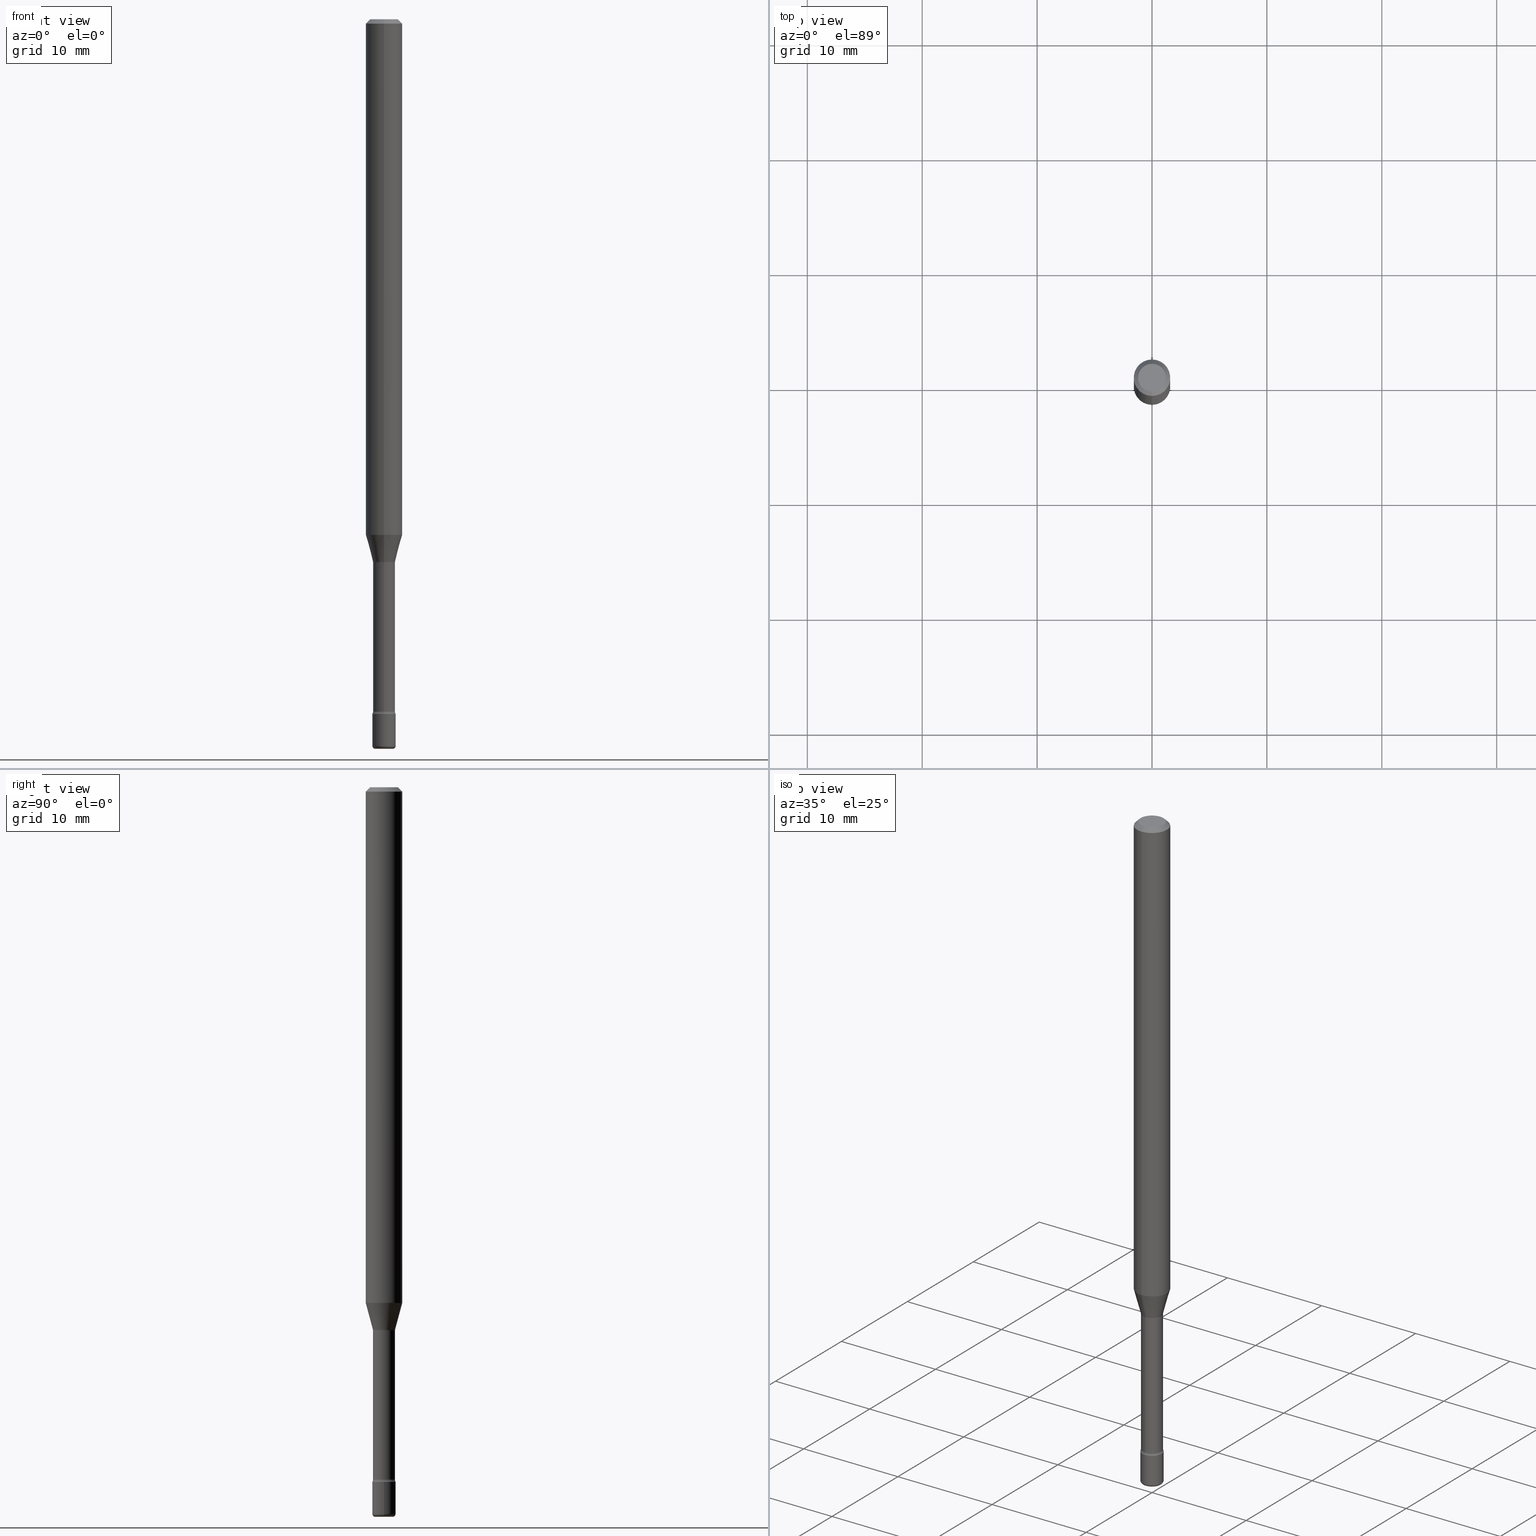
[diagram: canonical four-view strip — front | top / right | iso, engineering-drawing reading convention]
A machine part, canonical four-view strip (front | top / right | iso — engineering-drawing reading convention). The complete STEP part file that produces these views, byte-faithful:
ISO-10303-21;
HEADER;
FILE_DESCRIPTION (( 'STEP AP203' ),
    '1' );
FILE_NAME ('08945.STEP',
    '2024-03-06T20:11:54',
    ( '' ),
    ( '' ),
    'SwSTEP 2.0',
    'SolidWorks 2023',
    '' );
FILE_SCHEMA (( 'CONFIG_CONTROL_DESIGN' ));
ENDSEC;

DATA;
#1 = LINE ( 'NONE', #182, #111 ) ;
#2 = APPROVAL ( #396, 'UNSPECIFIED' ) ;
#3 = CARTESIAN_POINT ( 'NONE',  ( -2.793185071073924012E-16, -0.04000000000000829975, -2.379999999999999893 ) ) ;
#4 = FACE_OUTER_BOUND ( 'NONE', #187, .T. ) ;
#5 = APPROVAL_DATE_TIME ( #100, #194 ) ;
#6 = CIRCLE ( 'NONE', #527, 0.02999999999999999889 ) ;
#7 = CARTESIAN_POINT ( 'NONE',  ( 2.756905814749770095E-16, 0.03759999999999177195, -2.371861204020250025 ) ) ;
#8 = AXIS2_PLACEMENT_3D ( 'NONE', #233, #99, #362 ) ;
#9 = CARTESIAN_POINT ( 'NONE',  ( -3.673038368462397802E-16, -0.05260000000000830678, -2.371861204020249581 ) ) ;
#10 = FACE_OUTER_BOUND ( 'NONE', #128, .T. ) ;
#11 = ORIENTED_EDGE ( 'NONE', *, *, #105, .F. ) ;
#12 = DIRECTION ( 'NONE',  ( 7.105427357601001859E-15, 1.000000000000000000, -3.491481338843145583E-15 ) ) ;
#13 = PRODUCT ( '08945', '08945', '', ( #208 ) ) ;
#14 = CARTESIAN_POINT ( 'NONE',  ( 4.440892098501060035E-16, 0.06249999999999995143, -0.01500000000000024578 ) ) ;
#15 = PERSON ( 'UNSPECIFIED', 'UNSPECIFIED', 'UNSPECIFIED', ('UNSPECIFIED'), ('UNSPECIFIED'), ('UNSPECIFIED') ) ;
#16 = CC_DESIGN_DATE_AND_TIME_ASSIGNMENT ( #437, #41, ( #108 ) ) ;
#17 = ORIENTED_EDGE ( 'NONE', *, *, #471, .T. ) ;
#18 = CARTESIAN_POINT ( 'NONE',  ( 6.113672015462842613E-29, -8.728703347107864943E-15, -2.500000000000000000 ) ) ;
#19 = FACE_OUTER_BOUND ( 'NONE', #43, .T. ) ;
#20 = AXIS2_PLACEMENT_3D ( 'NONE', #414, #147, #150 ) ;
#21 = ADVANCED_FACE ( 'NONE', ( #216 ), #402, .T. ) ;
#22 = PLANE ( 'NONE',  #441 ) ;
#23 = DIRECTION ( 'NONE',  ( 4.937700262164548831E-15, 0.7071067811865452413, -0.7071067811865497932 ) ) ;
#24 = ORIENTED_EDGE ( 'NONE', *, *, #249, .F. ) ;
#25 = CARTESIAN_POINT ( 'NONE',  ( 5.819849929479863427E-29, -8.310249474741165062E-15, -2.379999999999999893 ) ) ;
#26 = EDGE_LOOP ( 'NONE', ( #337, #417, #166, #152 ) ) ;
#27 = CARTESIAN_POINT ( 'NONE',  ( 4.543621645165429494E-29, -6.487904301259741828E-15, -1.858092501787273143 ) ) ;
#28 = ORIENTED_EDGE ( 'NONE', *, *, #536, .T. ) ;
#29 = ORIENTED_EDGE ( 'NONE', *, *, #262, .T. ) ;
#30 = DIRECTION ( 'NONE',  ( -6.982962677686266711E-15, -1.000000000000000000, 3.491481338843145583E-15 ) ) ;
#31 = VECTOR ( 'NONE', #23, 39.37007874015748143 ) ;
#32 = CIRCLE ( 'NONE', #20, 0.03760000000000000842 ) ;
#33 = EDGE_CURVE ( 'NONE', #384, #139, #451, .T. ) ;
#34 = CARTESIAN_POINT ( 'NONE',  ( -1.169113584055446105E-44, 1.669184350826100908E-30, 4.780733988912460139E-16 ) ) ;
#35 = DIRECTION ( 'NONE',  ( -2.445468806185136877E-29, 3.491481338843145188E-15, 1.000000000000000000 ) ) ;
#36 = EDGE_LOOP ( 'NONE', ( #443, #380, #332, #11 ) ) ;
#37 = DIRECTION ( 'NONE',  ( -2.445315096420110410E-29, 3.491701459975279518E-15, 1.000000000000000000 ) ) ;
#38 = AXIS2_PLACEMENT_3D ( 'NONE', #487, #87, #219 ) ;
#39 = CIRCLE ( 'NONE', #356, 0.06250000000000000000 ) ;
#40 = PRODUCT_DEFINITION_FORMATION_WITH_SPECIFIED_SOURCE ( 'ANY', '', #13, .NOT_KNOWN. ) ;
#41 = DATE_TIME_ROLE ( 'creation_date' ) ;
#42 = EDGE_CURVE ( 'NONE', #139, #300, #354, .T. ) ;
#43 = EDGE_LOOP ( 'NONE', ( #222, #381 ) ) ;
#44 = ADVANCED_BREP_SHAPE_REPRESENTATION ( '08945', ( #238, #423, #207 ), #306 ) ;
#45 = CALENDAR_DATE ( 2024, 6, 3 ) ;
#46 = ORIENTED_EDGE ( 'NONE', *, *, #439, .T. ) ;
#47 = AXIS2_PLACEMENT_3D ( 'NONE', #517, #338, #205 ) ;
#48 = DIRECTION ( 'NONE',  ( 1.000000000000000000, 0.000000000000000000, 0.000000000000000000 ) ) ;
#49 = VECTOR ( 'NONE', #200, 39.37007874015748143 ) ;
#50 = ORIENTED_EDGE ( 'NONE', *, *, #371, .T. ) ;
#51 = DATE_AND_TIME ( #215, #80 ) ;
#52 = DIRECTION ( 'NONE',  ( -2.445315096420110410E-29, 3.491701459975279518E-15, 1.000000000000000000 ) ) ;
#53 = EDGE_CURVE ( 'NONE', #508, #177, #236, .T. ) ;
#54 = CARTESIAN_POINT ( 'NONE',  ( 4.553401260645949734E-29, -6.501050223826328957E-15, -1.861974787463811065 ) ) ;
#55 = DIRECTION ( 'NONE',  ( -1.000000000000000000, 6.982962677686265922E-15, -4.883557194083112340E-29 ) ) ;
#56 = EDGE_LOOP ( 'NONE', ( #24, #122, #184, #110 ) ) ;
#57 = AXIS2_PLACEMENT_3D ( 'NONE', #277, #503, #91 ) ;
#58 = FACE_OUTER_BOUND ( 'NONE', #510, .T. ) ;
#59 = DIRECTION ( 'NONE',  ( -2.445315096420110130E-29, 3.491701459975279518E-15, 1.000000000000000000 ) ) ;
#60 = EDGE_LOOP ( 'NONE', ( #138, #485, #359, #376 ) ) ;
#61 = DIRECTION ( 'NONE',  ( 1.000000000000000000, -6.982962677686236734E-15, 0.000000000000000000 ) ) ;
#62 = DIRECTION ( 'NONE',  ( -6.982962677686267499E-15, -1.000000000000000000, 0.000000000000000000 ) ) ;
#63 = CARTESIAN_POINT ( 'NONE',  ( 5.820215758720625190E-29, -8.309725586446686731E-15, -2.379999999999999893 ) ) ;
#64 = CIRCLE ( 'NONE', #143, 0.03811111260566397985 ) ;
#65 = DIRECTION ( 'NONE',  ( -2.445468806185136597E-29, 3.491481338843145583E-15, 1.000000000000000000 ) ) ;
#66 = DIRECTION ( 'NONE',  ( -6.982962677686265922E-15, -1.000000000000000000, 6.829619984160658243E-15 ) ) ;
#67 = CYLINDRICAL_SURFACE ( 'NONE', #490, 0.03760000000000002923 ) ;
#68 = CARTESIAN_POINT ( 'NONE',  ( 5.819849929479863427E-29, -8.310249474741165062E-15, -2.379999999999999893 ) ) ;
#69 = EDGE_CURVE ( 'NONE', #497, #344, #340, .T. ) ;
#70 = ORIENTED_EDGE ( 'NONE', *, *, #560, .F. ) ;
#71 = FACE_OUTER_BOUND ( 'NONE', #479, .T. ) ;
#72 = DIRECTION ( 'NONE',  ( -2.445468806185136597E-29, 3.491481338843145583E-15, 1.000000000000000000 ) ) ;
#73 = ADVANCED_FACE ( 'NONE', ( #484 ), #558, .T. ) ;
#74 = CARTESIAN_POINT ( 'NONE',  ( 0.02999999999999999889, -8.903277414050018455E-15, -2.489999999999999769 ) ) ;
#75 = DIRECTION ( 'NONE',  ( -6.982962677686265922E-15, -1.000000000000000000, 6.829619984160658243E-15 ) ) ;
#76 = APPLICATION_PROTOCOL_DEFINITION ( 'international standard', 'config_control_design', 1994, #433 ) ;
#77 = ORIENTED_EDGE ( 'NONE', *, *, #172, .F. ) ;
#78 = CIRCLE ( 'NONE', #169, 0.01499999999999996822 ) ;
#79 = CIRCLE ( 'NONE', #378, 0.02999999999999999889 ) ;
#80 = LOCAL_TIME ( 15, 11, 54.00000000000000000, #176 ) ;
#81 = AXIS2_PLACEMENT_3D ( 'NONE', #557, #426, #161 ) ;
#82 = ORIENTED_EDGE ( 'NONE', *, *, #371, .F. ) ;
#83 = VERTEX_POINT ( 'NONE', #3 ) ;
#84 = CALENDAR_DATE ( 2024, 6, 3 ) ;
#85 = TOROIDAL_SURFACE ( 'NONE', #185, 0.02999999999999999889, 0.01000000000000008347 ) ;
#86 = AXIS2_PLACEMENT_3D ( 'NONE', #554, #65, #296 ) ;
#87 = DIRECTION ( 'NONE',  ( 2.445315096420110410E-29, -3.491701459975279518E-15, -1.000000000000000000 ) ) ;
#88 = CARTESIAN_POINT ( 'NONE',  ( 6.614254624055285682E-46, -9.465608017287662254E-32, -2.707873144336310870E-17 ) ) ;
#89 = VERTEX_POINT ( 'NONE', #183 ) ;
#90 = EDGE_CURVE ( 'NONE', #344, #506, #78, .T. ) ;
#91 = DIRECTION ( 'NONE',  ( 1.000000000000000000, -6.982962677686265922E-15, 4.876176775795935793E-29 ) ) ;
#92 = DIRECTION ( 'NONE',  ( -4.851104656540965064E-15, -0.7071067811865501263, -0.7071067811865449082 ) ) ;
#93 = FACE_OUTER_BOUND ( 'NONE', #231, .T. ) ;
#94 = VERTEX_POINT ( 'NONE', #14 ) ;
#95 = VERTEX_POINT ( 'NONE', #159 ) ;
#96 = EDGE_LOOP ( 'NONE', ( #444, #501, #491, #412 ) ) ;
#97 = EDGE_CURVE ( 'NONE', #95, #513, #486, .T. ) ;
#98 = EDGE_CURVE ( 'NONE', #506, #83, #313, .T. ) ;
#99 = DIRECTION ( 'NONE',  ( -2.445315096420110410E-29, 3.491701459975279518E-15, 1.000000000000000000 ) ) ;
#100 = DATE_AND_TIME ( #283, #134 ) ;
#101 = AXIS2_PLACEMENT_3D ( 'NONE', #232, #537, #148 ) ;
#102 = CYLINDRICAL_SURFACE ( 'NONE', #248, 0.06250000000000000000 ) ;
#103 = CIRCLE ( 'NONE', #422, 0.03760000000000000842 ) ;
#104 = DIRECTION ( 'NONE',  ( -2.445468806185136597E-29, 3.491481338843145583E-15, 1.000000000000000000 ) ) ;
#105 = EDGE_CURVE ( 'NONE', #497, #515, #1, .T. ) ;
#106 = EDGE_CURVE ( 'NONE', #139, #384, #511, .T. ) ;
#107 = DIRECTION ( 'NONE',  ( 1.000000000000000000, -6.982962677686236734E-15, 0.000000000000000000 ) ) ;
#108 = PRODUCT_DEFINITION ( 'UNKNOWN', '', #40, #318 ) ;
#109 = LINE ( 'NONE', #196, #49 ) ;
#110 = ORIENTED_EDGE ( 'NONE', *, *, #294, .F. ) ;
#111 = VECTOR ( 'NONE', #392, 39.37007874015748143 ) ;
#112 = CARTESIAN_POINT ( 'NONE',  ( 5.820215758720625190E-29, -8.309725586446686731E-15, -2.379999999999999893 ) ) ;
#113 = CIRCLE ( 'NONE', #438, 0.01500000000000001853 ) ;
#114 = CARTESIAN_POINT ( 'NONE',  ( 0.04000000000000004247, -8.973107040826881753E-15, -2.489999999999999769 ) ) ;
#115 = ORIENTED_EDGE ( 'NONE', *, *, #156, .T. ) ;
#116 = CARTESIAN_POINT ( 'NONE',  ( 3.737454790098581624E-16, 0.05259999999999349224, -1.861974787463811509 ) ) ;
#117 = ADVANCED_FACE ( 'NONE', ( #539 ), #407, .F. ) ;
#118 = CARTESIAN_POINT ( 'NONE',  ( 3.840629472727447874E-16, 0.04749999999999998668, -1.929345507921888436E-16 ) ) ;
#119 = ORIENTED_EDGE ( 'NONE', *, *, #382, .F. ) ;
#120 = AXIS2_PLACEMENT_3D ( 'NONE', #178, #399, #255 ) ;
#121 = DIRECTION ( 'NONE',  ( 1.839019923739595582E-15, 0.2588190451025242922, 0.9659258262890673130 ) ) ;
#122 = ORIENTED_EDGE ( 'NONE', *, *, #475, .T. ) ;
#123 = FACE_OUTER_BOUND ( 'NONE', #140, .T. ) ;
#124 = ADVANCED_FACE ( 'NONE', ( #449 ), #160, .F. ) ;
#125 = ORIENTED_EDGE ( 'NONE', *, *, #223, .F. ) ;
#126 =( NAMED_UNIT ( * ) PLANE_ANGLE_UNIT ( ) SI_UNIT ( $, .RADIAN. ) );
#127 = CC_DESIGN_PERSON_AND_ORGANIZATION_ASSIGNMENT ( #311, #393, ( #13 ) ) ;
#128 = EDGE_LOOP ( 'NONE', ( #220, #28, #571, #268 ) ) ;
#129 = EDGE_CURVE ( 'NONE', #384, #94, #275, .T. ) ;
#130 = CARTESIAN_POINT ( 'NONE',  ( 0.04000000000000000083, -2.793185071074506290E-16, 1.950470710318374387E-30 ) ) ;
#131 = PERSON_AND_ORGANIZATION_ROLE ( 'creator' ) ;
#132 = DIMENSIONAL_EXPONENTS ( 1.000000000000000000, 0.000000000000000000, 0.000000000000000000, 0.000000000000000000, 0.000000000000000000, 0.000000000000000000, 0.000000000000000000 ) ;
#133 = AXIS2_PLACEMENT_3D ( 'NONE', #155, #370, #228 ) ;
#134 = LOCAL_TIME ( 15, 11, 54.00000000000000000, #328 ) ;
#135 = SECURITY_CLASSIFICATION_LEVEL ( 'unclassified' ) ;
#136 = DIRECTION ( 'NONE',  ( -2.445315096420110410E-29, 3.491701459975279518E-15, 1.000000000000000000 ) ) ;
#137 = LENGTH_MEASURE_WITH_UNIT ( LENGTH_MEASURE( 0.02539999999999999897 ), #261 );
#138 = ORIENTED_EDGE ( 'NONE', *, *, #284, .F. ) ;
#139 = VERTEX_POINT ( 'NONE', #256 ) ;
#140 = EDGE_LOOP ( 'NONE', ( #400, #532, #202, #395 ) ) ;
#141 = DIRECTION ( 'NONE',  ( -6.982962677686265922E-15, -1.000000000000000000, 3.491701459975280701E-15 ) ) ;
#142 = ORIENTED_EDGE ( 'NONE', *, *, #129, .T. ) ;
#143 = AXIS2_PLACEMENT_3D ( 'NONE', #250, #430, #331 ) ;
#144 = LOCAL_TIME ( 15, 11, 54.00000000000000000, #481 ) ;
#145 = ORIENTED_EDGE ( 'NONE', *, *, #217, .T. ) ;
#146 = ORIENTED_EDGE ( 'NONE', *, *, #42, .T. ) ;
#147 = DIRECTION ( 'NONE',  ( -2.445315096420110410E-29, 3.491701459975279518E-15, 1.000000000000000000 ) ) ;
#148 = DIRECTION ( 'NONE',  ( -6.982962677686265922E-15, -1.000000000000000000, 3.491701459975279518E-15 ) ) ;
#149 = ORIENTED_EDGE ( 'NONE', *, *, #536, .F. ) ;
#150 = DIRECTION ( 'NONE',  ( -6.982962677686265922E-15, -1.000000000000000000, 0.000000000000000000 ) ) ;
#151 = DIRECTION ( 'NONE',  ( -2.445315096420110410E-29, 3.491701459975279518E-15, 1.000000000000000000 ) ) ;
#152 = ORIENTED_EDGE ( 'NONE', *, *, #203, .T. ) ;
#153 = AXIS2_PLACEMENT_3D ( 'NONE', #285, #230, #450 ) ;
#154 = DIRECTION ( 'NONE',  ( -6.982962677686265922E-15, -1.000000000000000000, 3.491701459975279518E-15 ) ) ;
#155 = CARTESIAN_POINT ( 'NONE',  ( 3.667972644630171939E-31, -5.237552189962929655E-17, -0.01500000000000002720 ) ) ;
#156 = EDGE_CURVE ( 'NONE', #89, #435, #391, .T. ) ;
#157 = CARTESIAN_POINT ( 'NONE',  ( 5.800312587032241644E-29, -8.281309132162736146E-15, -2.371861204020250025 ) ) ;
#158 = DIRECTION ( 'NONE',  ( -2.445315096420110130E-29, 3.491701459975279518E-15, 1.000000000000000000 ) ) ;
#159 = CARTESIAN_POINT ( 'NONE',  ( -0.04000000000000000083, -8.217539965779019686E-15, -2.379999999999999893 ) ) ;
#160 = TOROIDAL_SURFACE ( 'NONE', #477, 0.05260000000000000092, 0.01500000000000002373 ) ;
#161 = DIRECTION ( 'NONE',  ( -1.000000000000000000, 6.982962677686265922E-15, -4.876176775795935793E-29 ) ) ;
#162 = AXIS2_PLACEMENT_3D ( 'NONE', #456, #235, #287 ) ;
#163 = EDGE_CURVE ( 'NONE', #286, #324, #79, .T. ) ;
#164 = DIRECTION ( 'NONE',  ( 1.000000000000000000, -6.982962677686245411E-15, 4.883557194083105614E-29 ) ) ;
#165 = CARTESIAN_POINT ( 'NONE',  ( 4.553115056938883903E-29, -6.501460083824549648E-15, -1.861974787463811065 ) ) ;
#166 = ORIENTED_EDGE ( 'NONE', *, *, #294, .T. ) ;
#167 = DIRECTION ( 'NONE',  ( -6.982962677686265922E-15, -1.000000000000000000, 0.000000000000000000 ) ) ;
#168 = EDGE_CURVE ( 'NONE', #344, #497, #199, .T. ) ;
#169 = AXIS2_PLACEMENT_3D ( 'NONE', #290, #463, #550 ) ;
#170 = AXIS2_PLACEMENT_3D ( 'NONE', #544, #186, #189 ) ;
#171 = DIRECTION ( 'NONE',  ( -2.445315096420110410E-29, 3.491701459975279518E-15, 1.000000000000000000 ) ) ;
#172 = EDGE_CURVE ( 'NONE', #293, #435, #408, .T. ) ;
#173 = DIRECTION ( 'NONE',  ( 1.000000000000000000, -6.982962677686259611E-15, 0.000000000000000000 ) ) ;
#174 = EDGE_LOOP ( 'NONE', ( #367, #320 ) ) ;
#175 = CARTESIAN_POINT ( 'NONE',  ( 2.707957421369426539E-16, 0.03811111260565749198, -1.858092501787273143 ) ) ;
#176 = COORDINATED_UNIVERSAL_TIME_OFFSET ( 5, 0, .BEHIND. ) ;
#177 = VERTEX_POINT ( 'NONE', #499 ) ;
#178 = CARTESIAN_POINT ( 'NONE',  ( 0.000000000000000000, 0.000000000000000000, 0.000000000000000000 ) ) ;
#179 = APPROVAL_PERSON_ORGANIZATION ( #280, #194, #363 ) ;
#180 = EDGE_CURVE ( 'NONE', #497, #83, #260, .T. ) ;
#181 = PERSON_AND_ORGANIZATION ( #15, #535 ) ;
#182 = CARTESIAN_POINT ( 'NONE',  ( -2.625593966810038003E-16, -0.03760000000000002923, 6.093613737863167448E-16 ) ) ;
#183 = CARTESIAN_POINT ( 'NONE',  ( 3.574424759935243533E-16, 0.03811111260565749198, -1.858092501787273143 ) ) ;
#184 = ORIENTED_EDGE ( 'NONE', *, *, #495, .T. ) ;
#185 = AXIS2_PLACEMENT_3D ( 'NONE', #291, #72, #164 ) ;
#186 = DIRECTION ( 'NONE',  ( -2.445315096420110410E-29, 3.491701459975279518E-15, 1.000000000000000000 ) ) ;
#187 = EDGE_LOOP ( 'NONE', ( #245, #274, #266, #241 ) ) ;
#188 = DIRECTION ( 'NONE',  ( -6.982962677686265922E-15, -1.000000000000000000, 4.370956789862821150E-15 ) ) ;
#189 = DIRECTION ( 'NONE',  ( -6.982962677686265922E-15, -1.000000000000000000, 4.370956789862821150E-15 ) ) ;
#190 = ORIENTED_EDGE ( 'NONE', *, *, #448, .T. ) ;
#191 = DIRECTION ( 'NONE',  ( -1.000000000000000000, 7.105427357600962416E-15, 0.000000000000000000 ) ) ;
#192 = PLANE ( 'NONE',  #368 ) ;
#193 = ORIENTED_EDGE ( 'NONE', *, *, #172, .T. ) ;
#194 = APPROVAL ( #234, 'UNSPECIFIED' ) ;
#195 = DIRECTION ( 'NONE',  ( 1.000000000000000000, -6.982962677686265922E-15, 4.876176775795935793E-29 ) ) ;
#196 = CARTESIAN_POINT ( 'NONE',  ( 4.440892098500625669E-16, 0.06250000000000000000, 2.598420576427910934E-16 ) ) ;
#197 = AXIS2_PLACEMENT_3D ( 'NONE', #211, #309, #319 ) ;
#198 = DIRECTION ( 'NONE',  ( 1.000000000000000000, -6.982962677686273021E-15, 0.000000000000000000 ) ) ;
#199 = CIRCLE ( 'NONE', #8, 0.03760000000000005699 ) ;
#200 = DIRECTION ( 'NONE',  ( -2.445315096420110130E-29, 3.491701459975279518E-15, 1.000000000000000000 ) ) ;
#201 = CARTESIAN_POINT ( 'NONE',  ( -2.661284769304047342E-16, -0.03811111260567047465, -1.858092501787273143 ) ) ;
#202 = ORIENTED_EDGE ( 'NONE', *, *, #382, .T. ) ;
#203 = EDGE_CURVE ( 'NONE', #515, #204, #32, .T. ) ;
#204 = VERTEX_POINT ( 'NONE', #377 ) ;
#205 = DIRECTION ( 'NONE',  ( -6.982962677686265922E-15, -1.000000000000000000, 3.483106191921935554E-15 ) ) ;
#206 = TOROIDAL_SURFACE ( 'NONE', #534, 0.05260000000000000092, 0.01500000000000002373 ) ;
#207 = AXIS2_PLACEMENT_3D ( 'NONE', #264, #303, #48 ) ;
#208 = MECHANICAL_CONTEXT ( 'NONE', #433, 'mechanical' ) ;
#209 = EDGE_LOOP ( 'NONE', ( #489, #50, #243, #427 ) ) ;
#210 =( NAMED_UNIT ( * ) SI_UNIT ( $, .STERADIAN. ) SOLID_ANGLE_UNIT ( ) );
#211 = CARTESIAN_POINT ( 'NONE',  ( 5.799948008803896804E-29, -8.281831228936231021E-15, -2.371861204020250025 ) ) ;
#212 = CC_DESIGN_DATE_AND_TIME_ASSIGNMENT ( #321, #458, ( #369 ) ) ;
#213 = CIRCLE ( 'NONE', #47, 0.06250000000000000000 ) ;
#214 = APPROVAL_PERSON_ORGANIZATION ( #564, #333, #346 ) ;
#215 = CALENDAR_DATE ( 2024, 6, 3 ) ;
#216 = FACE_OUTER_BOUND ( 'NONE', #60, .T. ) ;
#217 = EDGE_CURVE ( 'NONE', #508, #513, #516, .T. ) ;
#218 = PERSON_AND_ORGANIZATION ( #15, #535 ) ;
#219 = DIRECTION ( 'NONE',  ( 6.982962677686265922E-15, 1.000000000000000000, -3.483106191921935554E-15 ) ) ;
#220 = ORIENTED_EDGE ( 'NONE', *, *, #53, .T. ) ;
#221 = ADVANCED_FACE ( 'NONE', ( #263 ), #530, .T. ) ;
#222 = ORIENTED_EDGE ( 'NONE', *, *, #494, .T. ) ;
#223 = EDGE_CURVE ( 'NONE', #83, #506, #349, .T. ) ;
#224 = FACE_OUTER_BOUND ( 'NONE', #174, .T. ) ;
#225 = ORIENTED_EDGE ( 'NONE', *, *, #42, .F. ) ;
#226 = AXIS2_PLACEMENT_3D ( 'NONE', #157, #454, #317 ) ;
#227 = AXIS2_PLACEMENT_3D ( 'NONE', #34, #37, #473 ) ;
#228 = DIRECTION ( 'NONE',  ( 6.982962677686265922E-15, 1.000000000000000000, -3.483106191921935554E-15 ) ) ;
#229 = DIRECTION ( 'NONE',  ( -1.000000000000000000, 6.982962677686265922E-15, -4.883557194083112340E-29 ) ) ;
#230 = DIRECTION ( 'NONE',  ( 2.445315096420110130E-29, -3.491701459975279518E-15, -1.000000000000000000 ) ) ;
#231 = EDGE_LOOP ( 'NONE', ( #125, #457 ) ) ;
#232 = CARTESIAN_POINT ( 'NONE',  ( 5.800312587032241644E-29, -8.281309132162736146E-15, -2.371861204020250025 ) ) ;
#233 = CARTESIAN_POINT ( 'NONE',  ( 5.799948008803896804E-29, -8.281831228936231021E-15, -2.371861204020250025 ) ) ;
#234 = APPROVAL_STATUS ( 'not_yet_approved' ) ;
#235 = DIRECTION ( 'NONE',  ( -2.445315096420110410E-29, 3.491701459975279518E-15, 1.000000000000000000 ) ) ;
#236 = CIRCLE ( 'NONE', #566, 0.04000000000000000083 ) ;
#237 = VECTOR ( 'NONE', #556, 39.37007874015748854 ) ;
#238 = MANIFOLD_SOLID_BREP ( 'Body-Move/Copy2[1]', #520 ) ;
#239 = CARTESIAN_POINT ( 'NONE',  ( -3.673038368462520569E-16, -0.05260000000000650267, -1.861974787463810843 ) ) ;
#240 = APPROVAL_PERSON_ORGANIZATION ( #307, #2, #565 ) ;
#241 = ORIENTED_EDGE ( 'NONE', *, *, #180, .F. ) ;
#242 = DIRECTION ( 'NONE',  ( 1.000000000000000000, -7.105427357601001070E-15, 4.926318204248481480E-29 ) ) ;
#243 = ORIENTED_EDGE ( 'NONE', *, *, #53, .F. ) ;
#244 = CARTESIAN_POINT ( 'NONE',  ( -1.169113584055446105E-44, 1.669184350826100908E-30, 4.780733988912460139E-16 ) ) ;
#245 = ORIENTED_EDGE ( 'NONE', *, *, #168, .F. ) ;
#246 = AXIS2_PLACEMENT_3D ( 'NONE', #312, #136, #308 ) ;
#247 = CARTESIAN_POINT ( 'NONE',  ( 4.440892098501054119E-16, 0.06249999999999378969, -1.767071934891535356 ) ) ;
#248 = AXIS2_PLACEMENT_3D ( 'NONE', #541, #151, #281 ) ;
#249 = EDGE_CURVE ( 'NONE', #89, #476, #298, .T. ) ;
#250 = CARTESIAN_POINT ( 'NONE',  ( 4.543621645165429494E-29, -6.487904301259741828E-15, -1.858092501787273143 ) ) ;
#251 = ORIENTED_EDGE ( 'NONE', *, *, #390, .F. ) ;
#252 = ADVANCED_FACE ( 'NONE', ( #4 ), #398, .F. ) ;
#253 = EDGE_LOOP ( 'NONE', ( #225, #529, #142, #538 ) ) ;
#254 = CARTESIAN_POINT ( 'NONE',  ( -2.625593966809580957E-16, -0.03760000000000650322, -1.861974787463811065 ) ) ;
#255 = DIRECTION ( 'NONE',  ( 1.000000000000000000, -6.982962677686265922E-15, 4.876176775795935793E-29 ) ) ;
#256 = CARTESIAN_POINT ( 'NONE',  ( -3.773273898774339776E-16, -0.04749999999999998668, 1.387770879054626386E-16 ) ) ;
#257 = APPLICATION_PROTOCOL_DEFINITION ( 'international standard', 'config_control_design', 1994, #455 ) ;
#258 = AXIS2_PLACEMENT_3D ( 'NONE', #524, #315, #353 ) ;
#259 = AXIS2_PLACEMENT_3D ( 'NONE', #88, #52, #404 ) ;
#260 = CIRCLE ( 'NONE', #421, 0.01499999999999996822 ) ;
#261 =( LENGTH_UNIT ( ) NAMED_UNIT ( * ) SI_UNIT ( $, .METRE. ) );
#262 = EDGE_CURVE ( 'NONE', #435, #293, #388, .T. ) ;
#263 = FACE_OUTER_BOUND ( 'NONE', #462, .T. ) ;
#264 = CARTESIAN_POINT ( 'NONE',  ( 0.000000000000000000, 0.000000000000000000, 0.000000000000000000 ) ) ;
#265 = DIRECTION ( 'NONE',  ( 1.000000000000000000, -6.982962677686259611E-15, 0.000000000000000000 ) ) ;
#266 = ORIENTED_EDGE ( 'NONE', *, *, #98, .T. ) ;
#267 = CARTESIAN_POINT ( 'NONE',  ( 6.089217327400989947E-29, -8.693788533719431716E-15, -2.489999999999999769 ) ) ;
#268 = ORIENTED_EDGE ( 'NONE', *, *, #217, .F. ) ;
#269 = VECTOR ( 'NONE', #92, 39.37007874015748143 ) ;
#270 = AXIS2_PLACEMENT_3D ( 'NONE', #27, #467, #341 ) ;
#271 = ADVANCED_FACE ( 'NONE', ( #93 ), #192, .F. ) ;
#272 = EDGE_CURVE ( 'NONE', #324, #286, #6, .T. ) ;
#273 = PRODUCT_DEFINITION_SHAPE ( 'NONE', 'NONE',  #108 ) ;
#274 = ORIENTED_EDGE ( 'NONE', *, *, #90, .T. ) ;
#275 = LINE ( 'NONE', #432, #31 ) ;
#276 = DIRECTION ( 'NONE',  ( 1.000000000000000000, -6.982962677686245411E-15, 4.883557194083105614E-29 ) ) ;
#277 = CARTESIAN_POINT ( 'NONE',  ( 0.000000000000000000, 0.000000000000000000, 0.000000000000000000 ) ) ;
#278 = AXIS2_PLACEMENT_3D ( 'NONE', #112, #385, #561 ) ;
#279 = AXIS2_PLACEMENT_3D ( 'NONE', #500, #104, #276 ) ;
#280 = PERSON_AND_ORGANIZATION ( #15, #535 ) ;
#281 = DIRECTION ( 'NONE',  ( -6.982962677686265922E-15, -1.000000000000000000, 3.491701459975279518E-15 ) ) ;
#282 = ADVANCED_FACE ( 'NONE', ( #10 ), #322, .T. ) ;
#283 = CALENDAR_DATE ( 2024, 6, 3 ) ;
#284 = EDGE_CURVE ( 'NONE', #344, #204, #446, .T. ) ;
#285 = CARTESIAN_POINT ( 'NONE',  ( 3.316907271900975110E-16, 0.04749999999999998668, 5.964151437511574542E-17 ) ) ;
#286 = VERTEX_POINT ( 'NONE', #358 ) ;
#287 = DIRECTION ( 'NONE',  ( -6.982962677686266711E-15, -1.000000000000000000, 0.000000000000000000 ) ) ;
#288 = ADVANCED_FACE ( 'NONE', ( #365 ), #452, .T. ) ;
#289 = AXIS2_PLACEMENT_3D ( 'NONE', #25, #171, #66 ) ;
#290 = CARTESIAN_POINT ( 'NONE',  ( 3.737454790098707842E-16, 0.05259999999999174364, -2.371861204020250025 ) ) ;
#291 = CARTESIAN_POINT ( 'NONE',  ( 6.089217327400989947E-29, -8.693788533719431716E-15, -2.489999999999999769 ) ) ;
#292 = CIRCLE ( 'NONE', #86, 0.04000000000000000083 ) ;
#293 = VERTEX_POINT ( 'NONE', #505 ) ;
#294 = EDGE_CURVE ( 'NONE', #476, #515, #567, .T. ) ;
#295 = FACE_OUTER_BOUND ( 'NONE', #56, .T. ) ;
#296 = DIRECTION ( 'NONE',  ( 1.000000000000000000, -6.982962677686259611E-15, 0.000000000000000000 ) ) ;
#297 = CARTESIAN_POINT ( 'NONE',  ( 2.842170943040980615E-16, 0.03999999999999167416, -2.380000000000000338 ) ) ;
#298 = CIRCLE ( 'NONE', #559, 0.03811111260566397985 ) ;
#299 = ORIENTED_EDGE ( 'NONE', *, *, #163, .F. ) ;
#300 = VERTEX_POINT ( 'NONE', #330 ) ;
#301 = ADVANCED_FACE ( 'NONE', ( #224 ), #406, .F. ) ;
#302 = DIRECTION ( 'NONE',  ( -2.445315096420110410E-29, 3.491701459975279518E-15, 1.000000000000000000 ) ) ;
#303 = DIRECTION ( 'NONE',  ( 0.000000000000000000, 0.000000000000000000, 1.000000000000000000 ) ) ;
#304 = PERSON_AND_ORGANIZATION ( #15, #535 ) ;
#305 = AXIS2_PLACEMENT_3D ( 'NONE', #498, #413, #188 ) ;
#306 =( GEOMETRIC_REPRESENTATION_CONTEXT ( 3 ) GLOBAL_UNCERTAINTY_ASSIGNED_CONTEXT ( ( #403 ) ) GLOBAL_UNIT_ASSIGNED_CONTEXT ( ( #350, #126, #210 ) ) REPRESENTATION_CONTEXT ( 'NONE', 'WORKASPACE' ) );
#307 = PERSON_AND_ORGANIZATION ( #15, #535 ) ;
#308 = DIRECTION ( 'NONE',  ( -6.982962677686265922E-15, -1.000000000000000000, 3.491701459975280701E-15 ) ) ;
#309 = DIRECTION ( 'NONE',  ( -2.445315096420110410E-29, 3.491701459975279518E-15, 1.000000000000000000 ) ) ;
#310 = ADVANCED_FACE ( 'NONE', ( #58 ), #429, .T. ) ;
#311 = PERSON_AND_ORGANIZATION ( #15, #535 ) ;
#312 = CARTESIAN_POINT ( 'NONE',  ( -1.169113584055446105E-44, 1.669184350826100908E-30, 4.780733988912460139E-16 ) ) ;
#313 = CIRCLE ( 'NONE', #289, 0.04000000000000000083 ) ;
#314 = ADVANCED_FACE ( 'NONE', ( #420 ), #502, .T. ) ;
#315 = DIRECTION ( 'NONE',  ( -2.445315096420110410E-29, 3.491701459975279518E-15, 1.000000000000000000 ) ) ;
#316 = CC_DESIGN_APPROVAL ( #194, ( #369 ) ) ;
#317 = DIRECTION ( 'NONE',  ( -6.982962677686265922E-15, -1.000000000000000000, 3.491701459975279518E-15 ) ) ;
#318 = DESIGN_CONTEXT ( 'detailed design', #455, 'design' ) ;
#319 = DIRECTION ( 'NONE',  ( -6.982962677686265922E-15, -1.000000000000000000, 0.000000000000000000 ) ) ;
#320 = ORIENTED_EDGE ( 'NONE', *, *, #106, .T. ) ;
#321 = DATE_AND_TIME ( #45, #144 ) ;
#322 = CYLINDRICAL_SURFACE ( 'NONE', #57, 0.04000000000000000083 ) ;
#323 = EDGE_LOOP ( 'NONE', ( #299, #425 ) ) ;
#324 = VERTEX_POINT ( 'NONE', #411 ) ;
#325 = VECTOR ( 'NONE', #59, 39.37007874015748143 ) ;
#326 = CC_DESIGN_PERSON_AND_ORGANIZATION_ASSIGNMENT ( #218, #572, ( #108 ) ) ;
#327 = CIRCLE ( 'NONE', #389, 0.04000000000000000083 ) ;
#328 = COORDINATED_UNIVERSAL_TIME_OFFSET ( 5, 0, .BEHIND. ) ;
#329 = DIRECTION ( 'NONE',  ( -2.445468806185136597E-29, 3.491481338843145583E-15, 1.000000000000000000 ) ) ;
#330 = CARTESIAN_POINT ( 'NONE',  ( -4.364351673553912750E-16, -0.06250000000000005551, -0.01499999999999981036 ) ) ;
#331 = DIRECTION ( 'NONE',  ( -6.982962677686266711E-15, -1.000000000000000000, 0.000000000000000000 ) ) ;
#332 = ORIENTED_EDGE ( 'NONE', *, *, #203, .F. ) ;
#333 = APPROVAL ( #483, 'UNSPECIFIED' ) ;
#334 = AXIS2_PLACEMENT_3D ( 'NONE', #239, #55, #62 ) ;
#335 = CARTESIAN_POINT ( 'NONE',  ( -2.661284769304047342E-16, -0.03811111260567047465, -1.858092501787273143 ) ) ;
#336 = VECTOR ( 'NONE', #35, 39.37007874015748143 ) ;
#337 = ORIENTED_EDGE ( 'NONE', *, *, #475, .F. ) ;
#338 = DIRECTION ( 'NONE',  ( -2.445315096420110410E-29, 3.491701459975279518E-15, 1.000000000000000000 ) ) ;
#339 = ORIENTED_EDGE ( 'NONE', *, *, #106, .F. ) ;
#340 = CIRCLE ( 'NONE', #197, 0.03760000000000005699 ) ;
#341 = DIRECTION ( 'NONE',  ( -6.982962677686266711E-15, -1.000000000000000000, 0.000000000000000000 ) ) ;
#342 = AXIS2_PLACEMENT_3D ( 'NONE', #68, #343, #75 ) ;
#343 = DIRECTION ( 'NONE',  ( -2.445315096420110410E-29, 3.491701459975279518E-15, 1.000000000000000000 ) ) ;
#344 = VERTEX_POINT ( 'NONE', #7 ) ;
#345 = CALENDAR_DATE ( 2024, 6, 3 ) ;
#346 = APPROVAL_ROLE ( '' ) ;
#347 = COORDINATED_UNIVERSAL_TIME_OFFSET ( 5, 0, .BEHIND. ) ;
#348 = VECTOR ( 'NONE', #121, 39.37007874015748854 ) ;
#349 = CIRCLE ( 'NONE', #342, 0.04000000000000000083 ) ;
#350 =( CONVERSION_BASED_UNIT ( 'INCH', #137 ) LENGTH_UNIT ( ) NAMED_UNIT ( #132 ) );
#351 = ADVANCED_FACE ( 'NONE', ( #424 ), #102, .T. ) ;
#352 = PERSON_AND_ORGANIZATION ( #15, #535 ) ;
#353 = DIRECTION ( 'NONE',  ( -6.982962677686265133E-15, -1.000000000000000000, 3.491701459975279518E-15 ) ) ;
#354 = LINE ( 'NONE', #493, #269 ) ;
#355 = ORIENTED_EDGE ( 'NONE', *, *, #560, .T. ) ;
#356 = AXIS2_PLACEMENT_3D ( 'NONE', #518, #387, #563 ) ;
#357 = ORIENTED_EDGE ( 'NONE', *, *, #509, .F. ) ;
#358 = CARTESIAN_POINT ( 'NONE',  ( 0.02999999999999999889, -8.938192227438451682E-15, -2.500000000000000000 ) ) ;
#359 = ORIENTED_EDGE ( 'NONE', *, *, #105, .T. ) ;
#360 = DIRECTION ( 'NONE',  ( -6.982962677686265922E-15, -1.000000000000000000, 3.491701459975279518E-15 ) ) ;
#361 = EDGE_CURVE ( 'NONE', #293, #300, #460, .T. ) ;
#362 = DIRECTION ( 'NONE',  ( -6.982962677686265922E-15, -1.000000000000000000, 0.000000000000000000 ) ) ;
#363 = APPROVAL_ROLE ( '' ) ;
#364 = DIRECTION ( 'NONE',  ( -6.982962677686266711E-15, -1.000000000000000000, 0.000000000000000000 ) ) ;
#365 = FACE_OUTER_BOUND ( 'NONE', #209, .T. ) ;
#366 = CARTESIAN_POINT ( 'NONE',  ( 2.671640686457978776E-16, 0.03760000000000002923, 3.467854239961754309E-16 ) ) ;
#367 = ORIENTED_EDGE ( 'NONE', *, *, #33, .T. ) ;
#368 = AXIS2_PLACEMENT_3D ( 'NONE', #496, #492, #154 ) ;
#369 = SECURITY_CLASSIFICATION ( '', '', #135 ) ;
#370 = DIRECTION ( 'NONE',  ( 2.445315096420110410E-29, -3.491701459975279518E-15, -1.000000000000000000 ) ) ;
#371 = EDGE_CURVE ( 'NONE', #324, #177, #469, .T. ) ;
#372 = LINE ( 'NONE', #335, #237 ) ;
#373 = ADVANCED_FACE ( 'NONE', ( #19 ), #22, .T. ) ;
#374 = EDGE_LOOP ( 'NONE', ( #193, #468, #522, #519 ) ) ;
#375 = CARTESIAN_POINT ( 'NONE',  ( 0.04000000000000000083, -8.589044093554136769E-15, -2.379999999999999893 ) ) ;
#376 = ORIENTED_EDGE ( 'NONE', *, *, #495, .F. ) ;
#377 = CARTESIAN_POINT ( 'NONE',  ( 2.671640686458558589E-16, 0.03759999999999350667, -1.861974787463811065 ) ) ;
#378 = AXIS2_PLACEMENT_3D ( 'NONE', #18, #542, #61 ) ;
#379 = DIRECTION ( 'NONE',  ( -2.445315096420110410E-29, 3.491701459975279518E-15, 1.000000000000000000 ) ) ;
#380 = ORIENTED_EDGE ( 'NONE', *, *, #284, .T. ) ;
#381 = ORIENTED_EDGE ( 'NONE', *, *, #97, .T. ) ;
#382 = EDGE_CURVE ( 'NONE', #476, #293, #372, .T. ) ;
#383 = PLANE ( 'NONE',  #81 ) ;
#384 = VERTEX_POINT ( 'NONE', #118 ) ;
#385 = DIRECTION ( 'NONE',  ( -2.445468806185136597E-29, 3.491481338843145583E-15, 1.000000000000000000 ) ) ;
#386 = EDGE_LOOP ( 'NONE', ( #339, #146, #17, #459 ) ) ;
#387 = DIRECTION ( 'NONE',  ( -2.445315096420110410E-29, 3.491701459975279518E-15, 1.000000000000000000 ) ) ;
#388 = CIRCLE ( 'NONE', #170, 0.06250000000000000000 ) ;
#389 = AXIS2_PLACEMENT_3D ( 'NONE', #267, #531, #173 ) ;
#390 = EDGE_CURVE ( 'NONE', #94, #300, #213, .T. ) ;
#391 = LINE ( 'NONE', #175, #348 ) ;
#392 = DIRECTION ( 'NONE',  ( -2.445315096420110130E-29, 3.491701459975279518E-15, 1.000000000000000000 ) ) ;
#393 = PERSON_AND_ORGANIZATION_ROLE ( 'design_owner' ) ;
#394 = ADVANCED_FACE ( 'NONE', ( #514 ), #470, .T. ) ;
#395 = ORIENTED_EDGE ( 'NONE', *, *, #262, .F. ) ;
#396 = APPROVAL_STATUS ( 'not_yet_approved' ) ;
#397 = DIRECTION ( 'NONE',  ( -2.445315096420110410E-29, 3.491701459975279518E-15, 1.000000000000000000 ) ) ;
#398 = TOROIDAL_SURFACE ( 'NONE', #101, 0.05260000000000002174, 0.01499999999999996822 ) ;
#399 = DIRECTION ( 'NONE',  ( -2.445468806185136597E-29, 3.491481338843145583E-15, 1.000000000000000000 ) ) ;
#400 = ORIENTED_EDGE ( 'NONE', *, *, #156, .F. ) ;
#401 = APPROVAL_DATE_TIME ( #51, #2 ) ;
#402 = CYLINDRICAL_SURFACE ( 'NONE', #246, 0.03760000000000002923 ) ;
#403 = UNCERTAINTY_MEASURE_WITH_UNIT (LENGTH_MEASURE( 1.000000000000000082E-05 ), #350, 'distance_accuracy_value', 'NONE');
#404 = DIRECTION ( 'NONE',  ( -6.982962677686265133E-15, -1.000000000000000000, 3.491701459975279518E-15 ) ) ;
#405 = DIRECTION ( 'NONE',  ( -2.445315096420110410E-29, 3.491701459975279518E-15, 1.000000000000000000 ) ) ;
#406 = PLANE ( 'NONE',  #153 ) ;
#407 = TOROIDAL_SURFACE ( 'NONE', #226, 0.05260000000000002174, 0.01499999999999996822 ) ;
#408 = CIRCLE ( 'NONE', #305, 0.06250000000000000000 ) ;
#409 = LOCAL_TIME ( 15, 11, 54.00000000000000000, #568 ) ;
#410 = CC_DESIGN_APPROVAL ( #333, ( #40 ) ) ;
#411 = CARTESIAN_POINT ( 'NONE',  ( -0.02999999999999999889, -8.462555982897612254E-15, -2.500000000000000000 ) ) ;
#412 = ORIENTED_EDGE ( 'NONE', *, *, #223, .T. ) ;
#413 = DIRECTION ( 'NONE',  ( -2.445315096420110410E-29, 3.491701459975279518E-15, 1.000000000000000000 ) ) ;
#414 = CARTESIAN_POINT ( 'NONE',  ( 4.553115056938883903E-29, -6.501460083824549648E-15, -1.861974787463811065 ) ) ;
#415 = CARTESIAN_POINT ( 'NONE',  ( -0.02999999999999999889, -8.480625712991401471E-15, -2.489999999999999769 ) ) ;
#416 = ORIENTED_EDGE ( 'NONE', *, *, #97, .F. ) ;
#417 = ORIENTED_EDGE ( 'NONE', *, *, #439, .F. ) ;
#418 = ADVANCED_FACE ( 'NONE', ( #123 ), #552, .T. ) ;
#419 = ADVANCED_FACE ( 'NONE', ( #71 ), #85, .T. ) ;
#420 = FACE_OUTER_BOUND ( 'NONE', #386, .T. ) ;
#421 = AXIS2_PLACEMENT_3D ( 'NONE', #9, #229, #364 ) ;
#422 = AXIS2_PLACEMENT_3D ( 'NONE', #165, #302, #167 ) ;
#423 = MANIFOLD_SOLID_BREP ( 'Body-Move/Copy2[2]', #526 ) ;
#424 = FACE_OUTER_BOUND ( 'NONE', #374, .T. ) ;
#425 = ORIENTED_EDGE ( 'NONE', *, *, #272, .F. ) ;
#426 = DIRECTION ( 'NONE',  ( 2.438088387897960049E-29, -3.491481338843145188E-15, -1.000000000000000000 ) ) ;
#427 = ORIENTED_EDGE ( 'NONE', *, *, #448, .F. ) ;
#428 = CARTESIAN_POINT ( 'NONE',  ( 4.553401260645949734E-29, -6.501050223826328957E-15, -1.861974787463811065 ) ) ;
#429 = CONICAL_SURFACE ( 'NONE', #162, 0.03811111260566397985, 0.2617993877991495744 ) ;
#430 = DIRECTION ( 'NONE',  ( -2.445315096420110410E-29, 3.491701459975279518E-15, 1.000000000000000000 ) ) ;
#431 = CC_DESIGN_PERSON_AND_ORGANIZATION_ASSIGNMENT ( #181, #131, ( #40 ) ) ;
#432 = CARTESIAN_POINT ( 'NONE',  ( 4.364351673553919652E-16, 0.06249999999999995143, -0.01500000000000024578 ) ) ;
#433 = APPLICATION_CONTEXT ( 'configuration controlled 3d designs of mechanical parts and assemblies' ) ;
#434 = DIRECTION ( 'NONE',  ( -6.982962677686265922E-15, -1.000000000000000000, 3.491701459975279518E-15 ) ) ;
#435 = VERTEX_POINT ( 'NONE', #247 ) ;
#436 = CARTESIAN_POINT ( 'NONE',  ( -2.625593966809460162E-16, -0.03760000000000833509, -2.371861204020250025 ) ) ;
#437 = DATE_AND_TIME ( #345, #409 ) ;
#438 = AXIS2_PLACEMENT_3D ( 'NONE', #116, #242, #523 ) ;
#439 = EDGE_CURVE ( 'NONE', #476, #89, #64, .T. ) ;
#440 = APPROVAL_DATE_TIME ( #525, #333 ) ;
#441 = AXIS2_PLACEMENT_3D ( 'NONE', #63, #547, #195 ) ;
#442 = CARTESIAN_POINT ( 'NONE',  ( 4.543621645165429494E-29, -6.487904301259741828E-15, -1.858092501787273143 ) ) ;
#443 = ORIENTED_EDGE ( 'NONE', *, *, #69, .T. ) ;
#444 = ORIENTED_EDGE ( 'NONE', *, *, #90, .F. ) ;
#445 = ORIENTED_EDGE ( 'NONE', *, *, #272, .T. ) ;
#446 = LINE ( 'NONE', #366, #488 ) ;
#447 = DIRECTION ( 'NONE',  ( -2.445315096420110410E-29, 3.491701459975279518E-15, 1.000000000000000000 ) ) ;
#448 = EDGE_CURVE ( 'NONE', #286, #508, #512, .T. ) ;
#449 = FACE_OUTER_BOUND ( 'NONE', #26, .T. ) ;
#450 = DIRECTION ( 'NONE',  ( 6.982962677686265922E-15, 1.000000000000000000, -3.491701459975279518E-15 ) ) ;
#451 = CIRCLE ( 'NONE', #259, 0.04749999999999998668 ) ;
#452 = TOROIDAL_SURFACE ( 'NONE', #279, 0.02999999999999999889, 0.01000000000000008347 ) ;
#453 = CARTESIAN_POINT ( 'NONE',  ( -4.364351673553916201E-16, -0.06250000000000000000, 6.963047401397009838E-16 ) ) ;
#454 = DIRECTION ( 'NONE',  ( -2.445315096420110410E-29, 3.491701459975279518E-15, 1.000000000000000000 ) ) ;
#455 = APPLICATION_CONTEXT ( 'configuration controlled 3d designs of mechanical parts and assemblies' ) ;
#456 = CARTESIAN_POINT ( 'NONE',  ( 4.543621645165429494E-29, -6.487904301259741828E-15, -1.858092501787273143 ) ) ;
#457 = ORIENTED_EDGE ( 'NONE', *, *, #98, .F. ) ;
#458 = DATE_TIME_ROLE ( 'classification_date' ) ;
#459 = ORIENTED_EDGE ( 'NONE', *, *, #129, .F. ) ;
#460 = LINE ( 'NONE', #453, #325 ) ;
#461 = AXIS2_PLACEMENT_3D ( 'NONE', #74, #30, #198 ) ;
#462 = EDGE_LOOP ( 'NONE', ( #149, #355, #145, #416 ) ) ;
#463 = DIRECTION ( 'NONE',  ( 1.000000000000000000, -7.105427357601001070E-15, 4.926318204248481480E-29 ) ) ;
#464 = CARTESIAN_POINT ( 'NONE',  ( -0.04000000000000000083, 2.842170943040400803E-16, -1.967574036101962509E-30 ) ) ;
#465 = ADVANCED_FACE ( 'NONE', ( #295 ), #206, .F. ) ;
#466 = FACE_OUTER_BOUND ( 'NONE', #36, .T. ) ;
#467 = DIRECTION ( 'NONE',  ( -2.445315096420110410E-29, 3.491701459975279518E-15, 1.000000000000000000 ) ) ;
#468 = ORIENTED_EDGE ( 'NONE', *, *, #509, .T. ) ;
#469 = CIRCLE ( 'NONE', #478, 0.01000000000000008521 ) ;
#470 = CYLINDRICAL_SURFACE ( 'NONE', #227, 0.06250000000000000000 ) ;
#471 = EDGE_CURVE ( 'NONE', #300, #94, #39, .T. ) ;
#472 = ORIENTED_EDGE ( 'NONE', *, *, #361, .T. ) ;
#473 = DIRECTION ( 'NONE',  ( -6.982962677686265922E-15, -1.000000000000000000, 3.491701459975279518E-15 ) ) ;
#474 = PRODUCT_RELATED_PRODUCT_CATEGORY ( 'detail', '', ( #13 ) ) ;
#475 = EDGE_CURVE ( 'NONE', #89, #204, #113, .T. ) ;
#476 = VERTEX_POINT ( 'NONE', #201 ) ;
#477 = AXIS2_PLACEMENT_3D ( 'NONE', #54, #447, #360 ) ;
#478 = AXIS2_PLACEMENT_3D ( 'NONE', #415, #12, #191 ) ;
#479 = EDGE_LOOP ( 'NONE', ( #82, #445, #190, #70 ) ) ;
#480 = DIRECTION ( 'NONE',  ( -2.445468806185136877E-29, 3.491481338843145188E-15, 1.000000000000000000 ) ) ;
#481 = COORDINATED_UNIVERSAL_TIME_OFFSET ( 5, 0, .BEHIND. ) ;
#482 = CC_DESIGN_PERSON_AND_ORGANIZATION_ASSIGNMENT ( #352, #533, ( #369 ) ) ;
#483 = APPROVAL_STATUS ( 'not_yet_approved' ) ;
#484 = FACE_OUTER_BOUND ( 'NONE', #253, .T. ) ;
#485 = ORIENTED_EDGE ( 'NONE', *, *, #168, .T. ) ;
#486 = CIRCLE ( 'NONE', #278, 0.04000000000000000083 ) ;
#487 = CARTESIAN_POINT ( 'NONE',  ( 3.667972644630171939E-31, -5.237552189962929655E-17, -0.01500000000000002720 ) ) ;
#488 = VECTOR ( 'NONE', #158, 39.37007874015748143 ) ;
#489 = ORIENTED_EDGE ( 'NONE', *, *, #163, .T. ) ;
#490 = AXIS2_PLACEMENT_3D ( 'NONE', #244, #397, #141 ) ;
#491 = ORIENTED_EDGE ( 'NONE', *, *, #180, .T. ) ;
#492 = DIRECTION ( 'NONE',  ( -2.445315096420110130E-29, 3.491701459975279518E-15, 1.000000000000000000 ) ) ;
#493 = CARTESIAN_POINT ( 'NONE',  ( -4.287811248607203282E-16, -0.06250000000000005551, -0.01499999999999981036 ) ) ;
#494 = EDGE_CURVE ( 'NONE', #513, #95, #292, .T. ) ;
#495 = EDGE_CURVE ( 'NONE', #204, #515, #103, .T. ) ;
#496 = CARTESIAN_POINT ( 'NONE',  ( 2.793185071075088075E-16, 0.03999999999999169498, -2.380000000000000338 ) ) ;
#497 = VERTEX_POINT ( 'NONE', #436 ) ;
#498 = CARTESIAN_POINT ( 'NONE',  ( 4.321047678850565270E-29, -6.170087654942115428E-15, -1.767071934891535134 ) ) ;
#499 = CARTESIAN_POINT ( 'NONE',  ( -0.04000000000000004247, -8.409571439415391389E-15, -2.489999999999999769 ) ) ;
#500 = CARTESIAN_POINT ( 'NONE',  ( 6.089217327400989947E-29, -8.693788533719431716E-15, -2.489999999999999769 ) ) ;
#501 = ORIENTED_EDGE ( 'NONE', *, *, #69, .F. ) ;
#502 = CONICAL_SURFACE ( 'NONE', #133, 0.06250000000000000000, 0.7853981633974485010 ) ;
#503 = DIRECTION ( 'NONE',  ( -2.445468806185136597E-29, 3.491481338843145583E-15, 1.000000000000000000 ) ) ;
#504 = CC_DESIGN_PERSON_AND_ORGANIZATION_ASSIGNMENT ( #304, #528, ( #40 ) ) ;
#505 = CARTESIAN_POINT ( 'NONE',  ( -4.364351673553487258E-16, -0.06250000000000620337, -1.767071934891534912 ) ) ;
#506 = VERTEX_POINT ( 'NONE', #297 ) ;
#507 = LINE ( 'NONE', #464, #336 ) ;
#508 = VERTEX_POINT ( 'NONE', #114 ) ;
#509 = EDGE_CURVE ( 'NONE', #435, #94, #109, .T. ) ;
#510 = EDGE_LOOP ( 'NONE', ( #46, #115, #77, #119 ) ) ;
#511 = CIRCLE ( 'NONE', #258, 0.04749999999999998668 ) ;
#512 = CIRCLE ( 'NONE', #461, 0.01000000000000008521 ) ;
#513 = VERTEX_POINT ( 'NONE', #375 ) ;
#514 = FACE_OUTER_BOUND ( 'NONE', #548, .T. ) ;
#515 = VERTEX_POINT ( 'NONE', #254 ) ;
#516 = LINE ( 'NONE', #130, #546 ) ;
#517 = CARTESIAN_POINT ( 'NONE',  ( 3.667972644630171939E-31, -5.237552189962929655E-17, -0.01500000000000002720 ) ) ;
#518 = CARTESIAN_POINT ( 'NONE',  ( 3.667972644630171939E-31, -5.237552189962929655E-17, -0.01500000000000002720 ) ) ;
#519 = ORIENTED_EDGE ( 'NONE', *, *, #361, .F. ) ;
#520 = CLOSED_SHELL ( 'NONE', ( #282, #288, #373, #553, #419, #221 ) ) ;
#521 = CC_DESIGN_SECURITY_CLASSIFICATION ( #369, ( #40 ) ) ;
#522 = ORIENTED_EDGE ( 'NONE', *, *, #471, .F. ) ;
#523 = DIRECTION ( 'NONE',  ( 7.105427357601001859E-15, 1.000000000000000000, 0.000000000000000000 ) ) ;
#524 = CARTESIAN_POINT ( 'NONE',  ( 6.614254624055285682E-46, -9.465608017287662254E-32, -2.707873144336310870E-17 ) ) ;
#525 = DATE_AND_TIME ( #84, #562 ) ;
#526 = CLOSED_SHELL ( 'NONE', ( #465, #555, #252, #314, #351, #310, #418, #394, #73, #301, #271, #117, #21, #124 ) ) ;
#527 = AXIS2_PLACEMENT_3D ( 'NONE', #549, #329, #107 ) ;
#528 = PERSON_AND_ORGANIZATION_ROLE ( 'design_supplier' ) ;
#529 = ORIENTED_EDGE ( 'NONE', *, *, #33, .F. ) ;
#530 = CYLINDRICAL_SURFACE ( 'NONE', #120, 0.04000000000000000083 ) ;
#531 = DIRECTION ( 'NONE',  ( -2.445468806185136597E-29, 3.491481338843145583E-15, 1.000000000000000000 ) ) ;
#532 = ORIENTED_EDGE ( 'NONE', *, *, #249, .T. ) ;
#533 = PERSON_AND_ORGANIZATION_ROLE ( 'classification_officer' ) ;
#534 = AXIS2_PLACEMENT_3D ( 'NONE', #428, #379, #434 ) ;
#535 = ORGANIZATION ( 'UNSPECIFIED', 'UNSPECIFIED', '' ) ;
#536 = EDGE_CURVE ( 'NONE', #177, #95, #507, .T. ) ;
#537 = DIRECTION ( 'NONE',  ( -2.445315096420110410E-29, 3.491701459975279518E-15, 1.000000000000000000 ) ) ;
#538 = ORIENTED_EDGE ( 'NONE', *, *, #390, .T. ) ;
#539 = FACE_OUTER_BOUND ( 'NONE', #96, .T. ) ;
#540 = DIRECTION ( 'NONE',  ( -2.445468806185136597E-29, 3.491481338843145583E-15, 1.000000000000000000 ) ) ;
#541 = CARTESIAN_POINT ( 'NONE',  ( -1.169113584055446105E-44, 1.669184350826100908E-30, 4.780733988912460139E-16 ) ) ;
#542 = DIRECTION ( 'NONE',  ( -2.445468806185136597E-29, 3.491481338843145583E-15, 1.000000000000000000 ) ) ;
#543 = SHAPE_DEFINITION_REPRESENTATION ( #273, #44 ) ;
#544 = CARTESIAN_POINT ( 'NONE',  ( 4.321047678850565270E-29, -6.170087654942115428E-15, -1.767071934891535134 ) ) ;
#545 = CARTESIAN_POINT ( 'NONE',  ( 6.089217327400989947E-29, -8.693788533719431716E-15, -2.489999999999999769 ) ) ;
#546 = VECTOR ( 'NONE', #480, 39.37007874015748143 ) ;
#547 = DIRECTION ( 'NONE',  ( -2.438088387897960049E-29, 3.491481338843145188E-15, 1.000000000000000000 ) ) ;
#548 = EDGE_LOOP ( 'NONE', ( #357, #29, #472, #251 ) ) ;
#549 = CARTESIAN_POINT ( 'NONE',  ( 6.113672015462842613E-29, -8.728703347107864943E-15, -2.500000000000000000 ) ) ;
#550 = DIRECTION ( 'NONE',  ( 7.105427357601001859E-15, 1.000000000000000000, 0.000000000000000000 ) ) ;
#551 = FACE_OUTER_BOUND ( 'NONE', #323, .T. ) ;
#552 = CONICAL_SURFACE ( 'NONE', #270, 0.03811111260566397985, 0.2617993877991495744 ) ;
#553 = ADVANCED_FACE ( 'NONE', ( #551 ), #383, .T. ) ;
#554 = CARTESIAN_POINT ( 'NONE',  ( 5.820215758720625190E-29, -8.309725586446686731E-15, -2.379999999999999893 ) ) ;
#555 = ADVANCED_FACE ( 'NONE', ( #466 ), #67, .T. ) ;
#556 = DIRECTION ( 'NONE',  ( -1.807323732225325406E-15, -0.2588190451025175198, 0.9659258262890690894 ) ) ;
#557 = CARTESIAN_POINT ( 'NONE',  ( 2.094888803306491331E-16, 0.02999999999999126976, -2.500000000000000000 ) ) ;
#558 = CONICAL_SURFACE ( 'NONE', #38, 0.06250000000000000000, 0.7853981633974485010 ) ;
#559 = AXIS2_PLACEMENT_3D ( 'NONE', #442, #405, #570 ) ;
#560 = EDGE_CURVE ( 'NONE', #177, #508, #327, .T. ) ;
#561 = DIRECTION ( 'NONE',  ( 1.000000000000000000, -6.982962677686259611E-15, 0.000000000000000000 ) ) ;
#562 = LOCAL_TIME ( 15, 11, 54.00000000000000000, #347 ) ;
#563 = DIRECTION ( 'NONE',  ( -6.982962677686265922E-15, -1.000000000000000000, 3.483106191921935554E-15 ) ) ;
#564 = PERSON_AND_ORGANIZATION ( #15, #535 ) ;
#565 = APPROVAL_ROLE ( '' ) ;
#566 = AXIS2_PLACEMENT_3D ( 'NONE', #545, #540, #265 ) ;
#567 = CIRCLE ( 'NONE', #334, 0.01500000000000001853 ) ;
#568 = COORDINATED_UNIVERSAL_TIME_OFFSET ( 5, 0, .BEHIND. ) ;
#569 = CC_DESIGN_APPROVAL ( #2, ( #108 ) ) ;
#570 = DIRECTION ( 'NONE',  ( -6.982962677686266711E-15, -1.000000000000000000, 0.000000000000000000 ) ) ;
#571 = ORIENTED_EDGE ( 'NONE', *, *, #494, .F. ) ;
#572 = PERSON_AND_ORGANIZATION_ROLE ( 'creator' ) ;
ENDSEC;
END-ISO-10303-21;
